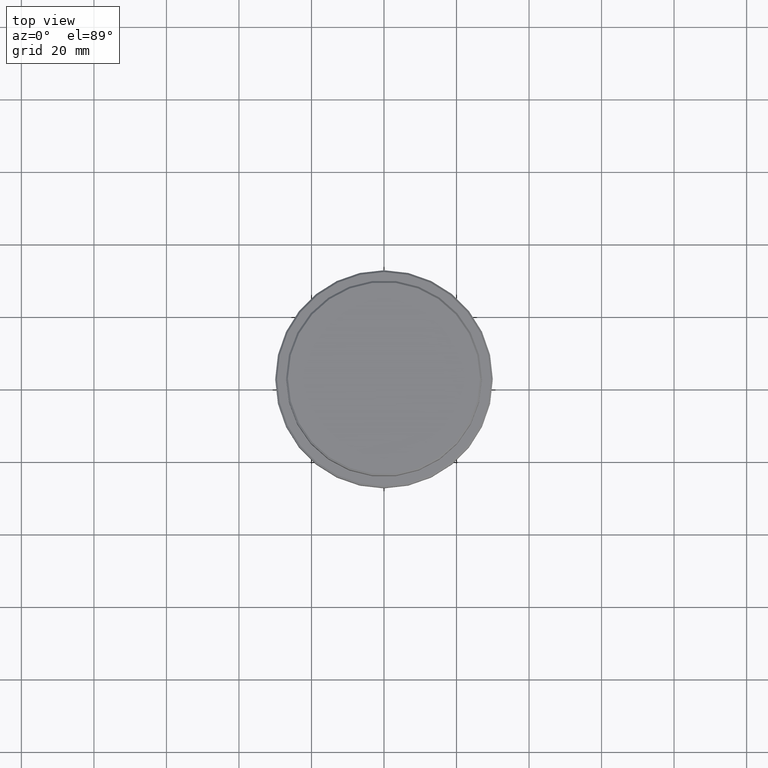
[diagram: clean part render]
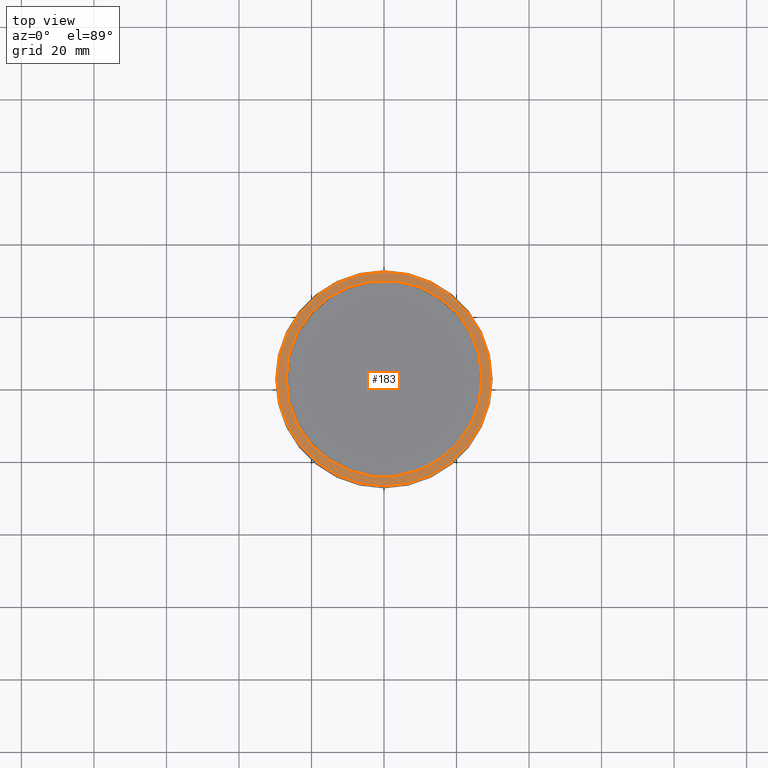
[diagram: same view with one face highlighted and labeled with its STEP entity id]
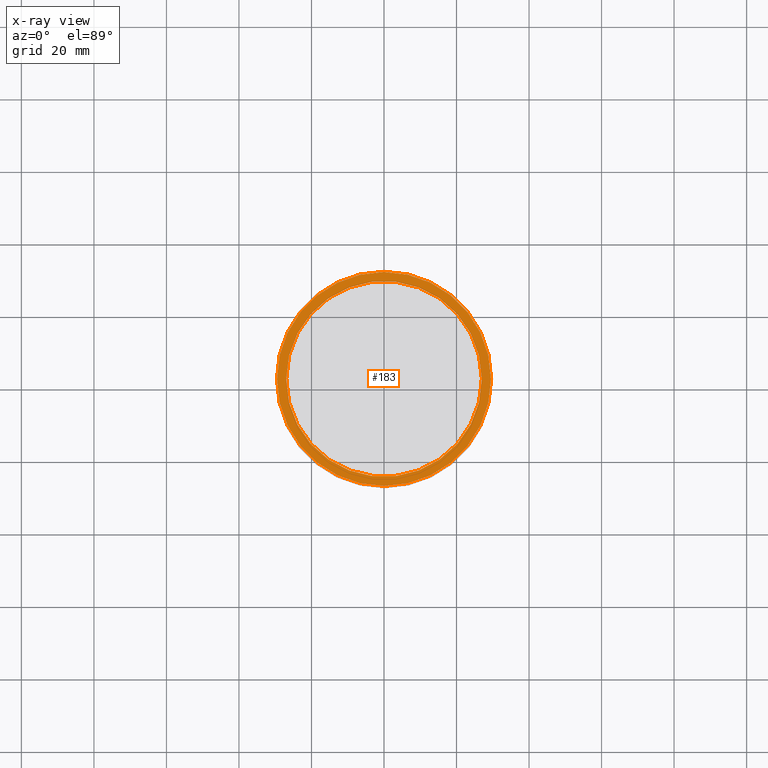
[diagram: x-ray of the same camera — body ghosted, the highlighted face saturated]
A machine part, top view. The second image highlights one B-rep face of the part: STEP entity #183.
The next image is the same camera in x-ray: the body ghosted, the highlighted face saturated — about 0% of this face is hidden behind the body in this view.
In plain terms, the highlighted planar face has unit normal (0, -0, 1).
Its self-contained STEP definition (entity closure, byte-faithful):
#54 = CIRCLE ( 'NONE', #657, 26.99999999999999289 ) ;
#113 = ORIENTED_EDGE ( 'NONE', *, *, #740, .T. ) ;
#166 = AXIS2_PLACEMENT_3D ( 'NONE', #485, #1360, #259 ) ;
#171 = CIRCLE ( 'NONE', #983, 26.99999999999999289 ) ;
#183 = ADVANCED_FACE ( 'NONE', ( #876, #317 ), #919, .T. ) ;
#220 = CIRCLE ( 'NONE', #690, 29.50000000000000000 ) ;
#225 = DIRECTION ( 'NONE',  ( 1.000000000000000000, 0.000000000000000000, 0.000000000000000000 ) ) ;
#259 = DIRECTION ( 'NONE',  ( 1.000000000000000000, 0.000000000000000000, 0.000000000000000000 ) ) ;
#317 = FACE_BOUND ( 'NONE', #1085, .T. ) ;
#357 = EDGE_CURVE ( 'NONE', #774, #452, #711, .T. ) ;
#387 = EDGE_CURVE ( 'NONE', #1417, #654, #54, .T. ) ;
#406 = CARTESIAN_POINT ( 'NONE',  ( 0.000000000000000000, 0.000000000000000000, -12.00000000000000178 ) ) ;
#415 = CARTESIAN_POINT ( 'NONE',  ( 0.000000000000000000, 0.000000000000000000, -12.00000000000000178 ) ) ;
#452 = VERTEX_POINT ( 'NONE', #1334 ) ;
#485 = CARTESIAN_POINT ( 'NONE',  ( 0.000000000000000000, 26.49999999999999645, -12.00000000000000178 ) ) ;
#619 = DIRECTION ( 'NONE',  ( -0.000000000000000000, -0.000000000000000000, 1.000000000000000000 ) ) ;
#654 = VERTEX_POINT ( 'NONE', #1260 ) ;
#657 = AXIS2_PLACEMENT_3D ( 'NONE', #406, #739, #947 ) ;
#690 = AXIS2_PLACEMENT_3D ( 'NONE', #1303, #1093, #971 ) ;
#711 = CIRCLE ( 'NONE', #1211, 29.50000000000000000 ) ;
#739 = DIRECTION ( 'NONE',  ( 0.000000000000000000, 0.000000000000000000, -1.000000000000000000 ) ) ;
#740 = EDGE_CURVE ( 'NONE', #452, #774, #220, .T. ) ;
#774 = VERTEX_POINT ( 'NONE', #877 ) ;
#843 = DIRECTION ( 'NONE',  ( 1.000000000000000000, 0.000000000000000000, 0.000000000000000000 ) ) ;
#876 = FACE_OUTER_BOUND ( 'NONE', #1169, .T. ) ;
#877 = CARTESIAN_POINT ( 'NONE',  ( -29.50000000000000000, 0.000000000000000000, -12.00000000000000178 ) ) ;
#919 = PLANE ( 'NONE',  #166 ) ;
#927 = ORIENTED_EDGE ( 'NONE', *, *, #1064, .T. ) ;
#947 = DIRECTION ( 'NONE',  ( 1.000000000000000000, 0.000000000000000000, 0.000000000000000000 ) ) ;
#971 = DIRECTION ( 'NONE',  ( 1.000000000000000000, 0.000000000000000000, 0.000000000000000000 ) ) ;
#983 = AXIS2_PLACEMENT_3D ( 'NONE', #415, #1323, #225 ) ;
#1064 = EDGE_CURVE ( 'NONE', #654, #1417, #171, .T. ) ;
#1072 = CARTESIAN_POINT ( 'NONE',  ( 26.99999999999999289, 0.000000000000000000, -12.00000000000000178 ) ) ;
#1085 = EDGE_LOOP ( 'NONE', ( #1175, #927 ) ) ;
#1093 = DIRECTION ( 'NONE',  ( -0.000000000000000000, -0.000000000000000000, 1.000000000000000000 ) ) ;
#1169 = EDGE_LOOP ( 'NONE', ( #1297, #113 ) ) ;
#1173 = CARTESIAN_POINT ( 'NONE',  ( 0.000000000000000000, 0.000000000000000000, -12.00000000000000178 ) ) ;
#1175 = ORIENTED_EDGE ( 'NONE', *, *, #387, .T. ) ;
#1211 = AXIS2_PLACEMENT_3D ( 'NONE', #1173, #619, #843 ) ;
#1260 = CARTESIAN_POINT ( 'NONE',  ( -26.99999999999999289, 3.306546357697852944E-15, -12.00000000000000178 ) ) ;
#1297 = ORIENTED_EDGE ( 'NONE', *, *, #357, .T. ) ;
#1303 = CARTESIAN_POINT ( 'NONE',  ( 0.000000000000000000, 0.000000000000000000, -12.00000000000000178 ) ) ;
#1323 = DIRECTION ( 'NONE',  ( 0.000000000000000000, 0.000000000000000000, -1.000000000000000000 ) ) ;
#1334 = CARTESIAN_POINT ( 'NONE',  ( 29.50000000000000000, 3.643324227463375391E-15, -12.00000000000000178 ) ) ;
#1360 = DIRECTION ( 'NONE',  ( 0.000000000000000000, -0.000000000000000000, 1.000000000000000000 ) ) ;
#1417 = VERTEX_POINT ( 'NONE', #1072 ) ;